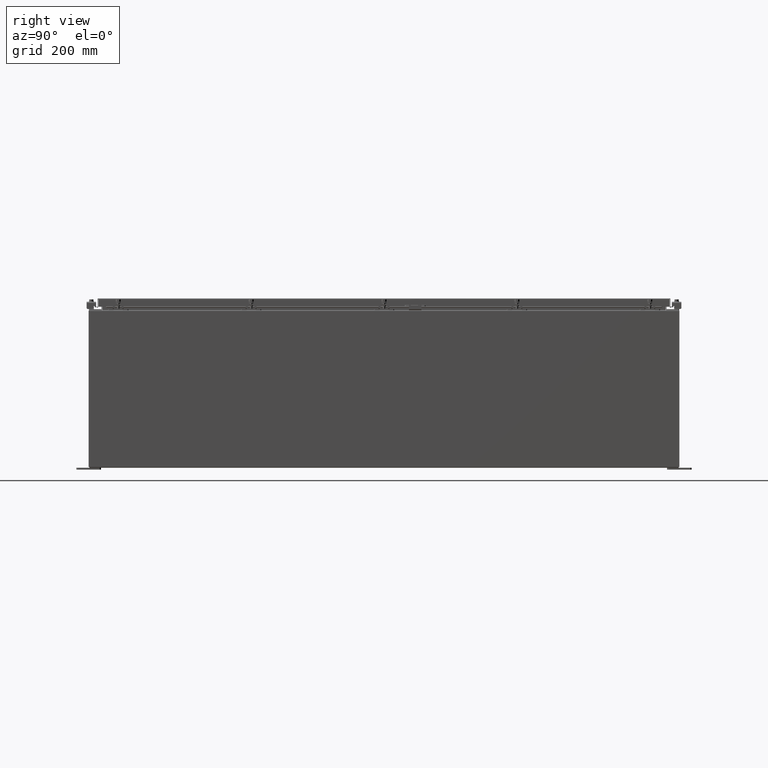
[diagram: clean part render]
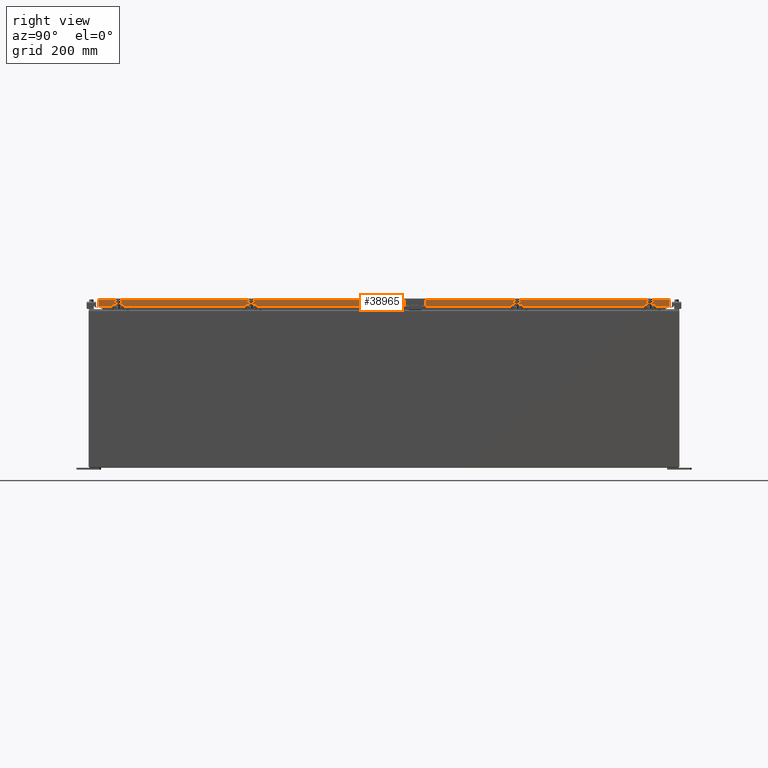
[diagram: same view with one face highlighted and labeled with its STEP entity id]
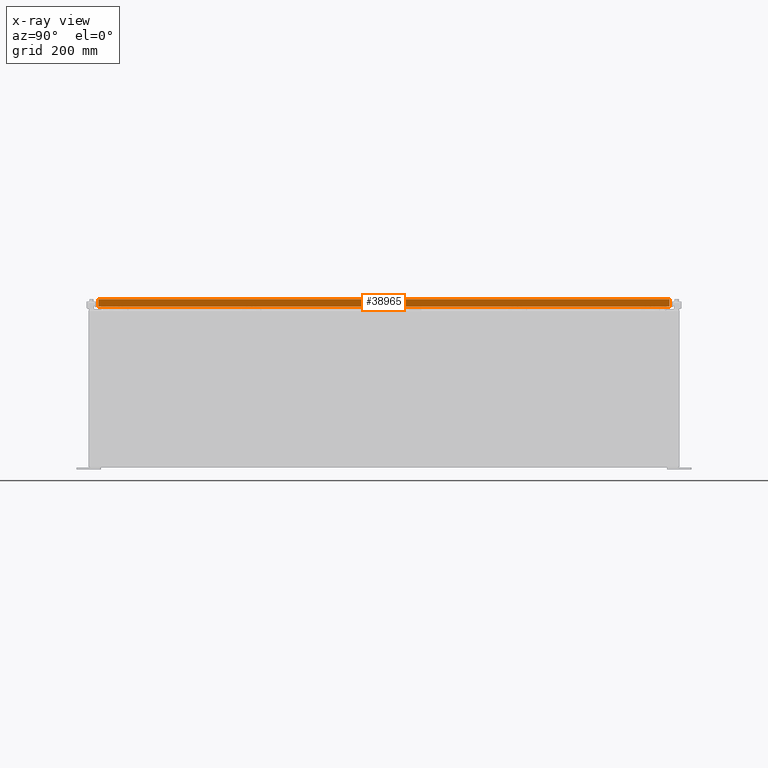
[diagram: x-ray of the same camera — body ghosted, the highlighted face saturated]
A machine part, right view. The second image highlights one B-rep face of the part: STEP entity #38965.
The next image is the same camera in x-ray: the body ghosted, the highlighted face saturated — about 0% of this face is hidden behind the body in this view.
In plain terms, the highlighted planar face has unit normal (1, 0, 0).
Its self-contained STEP definition (entity closure, byte-faithful):
#261 = DIRECTION ( 'NONE',  ( 0.0000000000000000000, -1.000000000000000000, 0.0000000000000000000 ) ) ;
#1371 = ORIENTED_EDGE ( 'NONE', *, *, #27985, .T. ) ;
#1472 = EDGE_CURVE ( 'NONE', #24922, #3469, #42859, .T. ) ;
#1912 = CARTESIAN_POINT ( 'NONE',  ( 17.07800000000000700, -29.09400000000000100, -0.8499999999999996400 ) ) ;
#3265 = ORIENTED_EDGE ( 'NONE', *, *, #28173, .F. ) ;
#3469 = VERTEX_POINT ( 'NONE', #48621 ) ;
#3562 = VERTEX_POINT ( 'NONE', #10127 ) ;
#3793 = DIRECTION ( 'NONE',  ( -2.818880942772360100E-015, -6.982962677686265900E-015, 1.000000000000000000 ) ) ;
#4064 = DIRECTION ( 'NONE',  ( 0.0000000000000000000, -1.000000000000000000, 0.0000000000000000000 ) ) ;
#5689 = ORIENTED_EDGE ( 'NONE', *, *, #28067, .F. ) ;
#8587 = LINE ( 'NONE', #1912, #58747 ) ;
#10127 = CARTESIAN_POINT ( 'NONE',  ( 17.07800000000000300, 29.00515786437626500, -0.08770000000000007000 ) ) ;
#10717 = VECTOR ( 'NONE', #3793, 39.37007874015748100 ) ;
#11800 = EDGE_CURVE ( 'NONE', #58510, #37317, #8587, .T. ) ;
#13717 = VECTOR ( 'NONE', #261, 39.37007874015748100 ) ;
#14446 = VECTOR ( 'NONE', #45604, 39.37007874015748100 ) ;
#15818 = ORIENTED_EDGE ( 'NONE', *, *, #41920, .T. ) ;
#17615 = DIRECTION ( 'NONE',  ( 1.000000000000000000, 0.0000000000000000000, 2.818880942772360100E-015 ) ) ;
#18482 = CARTESIAN_POINT ( 'NONE',  ( 17.07800000000000300, 29.00515786437626500, 2.509435972240157400E-013 ) ) ;
#23940 = CARTESIAN_POINT ( 'NONE',  ( 17.07799999999999600, 28.25515786437626200, -0.8500000000000016400 ) ) ;
#24496 = CARTESIAN_POINT ( 'NONE',  ( 17.07800000000000300, 0.0000000000000000000, -0.08770000000000007000 ) ) ;
#24922 = VERTEX_POINT ( 'NONE', #25712 ) ;
#25712 = CARTESIAN_POINT ( 'NONE',  ( 17.07799999999999600, -28.25515786437625800, -0.8500000000000016400 ) ) ;
#27309 = AXIS2_PLACEMENT_3D ( 'NONE', #36946, #17615, #51720 ) ;
#27985 = EDGE_CURVE ( 'NONE', #3562, #42082, #28114, .T. ) ;
#28067 = EDGE_CURVE ( 'NONE', #37317, #24922, #47965, .T. ) ;
#28114 = LINE ( 'NONE', #24496, #13717 ) ;
#28173 = EDGE_CURVE ( 'NONE', #3469, #42082, #41832, .T. ) ;
#31442 = VECTOR ( 'NONE', #4064, 39.37007874015748100 ) ;
#32034 = PLANE ( 'NONE',  #27309 ) ;
#33166 = CARTESIAN_POINT ( 'NONE',  ( 17.07800000000000700, -29.09400000000000100, -0.8499999999999996400 ) ) ;
#34142 = CARTESIAN_POINT ( 'NONE',  ( 17.07800000000000300, -29.00515786437626500, -0.08770000000000007000 ) ) ;
#36529 = LINE ( 'NONE', #18482, #10717 ) ;
#36946 = CARTESIAN_POINT ( 'NONE',  ( 17.07800000000000300, 0.0000000000000000000, 4.840166239667796000E-014 ) ) ;
#37317 = VERTEX_POINT ( 'NONE', #23940 ) ;
#38965 = ADVANCED_FACE ( 'NONE', ( #40072 ), #32034, .T. ) ;
#40072 = FACE_OUTER_BOUND ( 'NONE', #50633, .T. ) ;
#41832 = LINE ( 'NONE', #55175, #14446 ) ;
#41920 = EDGE_CURVE ( 'NONE', #58510, #3562, #36529, .T. ) ;
#42082 = VERTEX_POINT ( 'NONE', #34142 ) ;
#42859 = LINE ( 'NONE', #33166, #31442 ) ;
#43460 = ORIENTED_EDGE ( 'NONE', *, *, #11800, .F. ) ;
#45604 = DIRECTION ( 'NONE',  ( -2.818880942772360100E-015, -6.982962677686265900E-015, 1.000000000000000000 ) ) ;
#47965 = LINE ( 'NONE', #59199, #59337 ) ;
#48621 = CARTESIAN_POINT ( 'NONE',  ( 17.07800000000000700, -29.00515786437626200, -0.8499999999999996400 ) ) ;
#50633 = EDGE_LOOP ( 'NONE', ( #3265, #61820, #5689, #43460, #15818, #1371 ) ) ;
#50680 = DIRECTION ( 'NONE',  ( 0.0000000000000000000, -1.000000000000000000, 0.0000000000000000000 ) ) ;
#51720 = DIRECTION ( 'NONE',  ( 2.818880942772360100E-015, 0.0000000000000000000, -1.000000000000000000 ) ) ;
#51788 = CARTESIAN_POINT ( 'NONE',  ( 17.07800000000000700, 29.00515786437627200, -0.8499999999999996400 ) ) ;
#54341 = DIRECTION ( 'NONE',  ( 0.0000000000000000000, -1.000000000000000000, 0.0000000000000000000 ) ) ;
#55175 = CARTESIAN_POINT ( 'NONE',  ( 17.07800000000000300, -29.00515786437626500, -0.07469999999999978000 ) ) ;
#58510 = VERTEX_POINT ( 'NONE', #51788 ) ;
#58747 = VECTOR ( 'NONE', #50680, 39.37007874015748100 ) ;
#59199 = CARTESIAN_POINT ( 'NONE',  ( 17.07799999999999600, 28.25515786437627600, -0.8500000000000016400 ) ) ;
#59337 = VECTOR ( 'NONE', #54341, 39.37007874015748100 ) ;
#61820 = ORIENTED_EDGE ( 'NONE', *, *, #1472, .F. ) ;